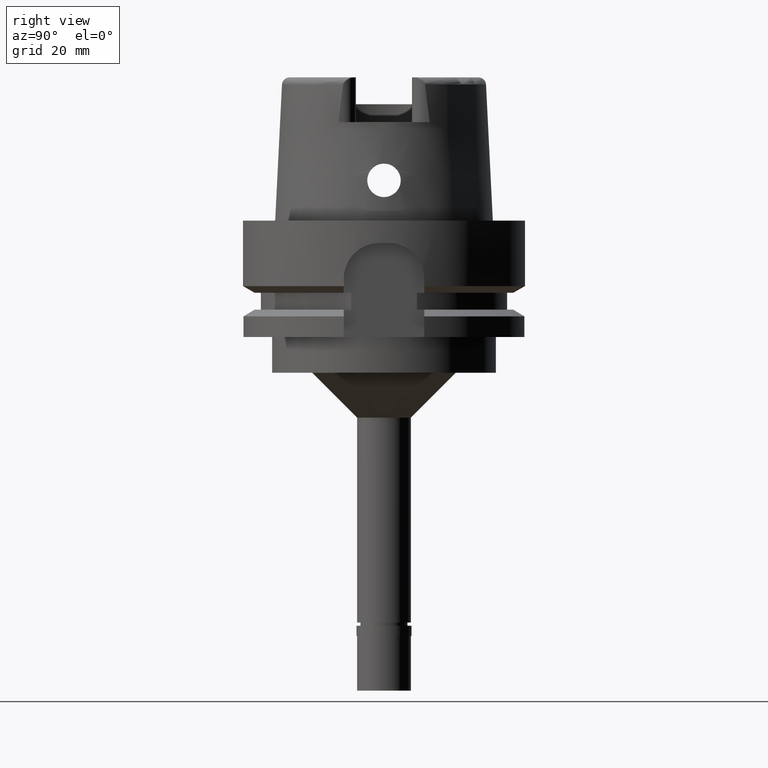
[diagram: clean part render]
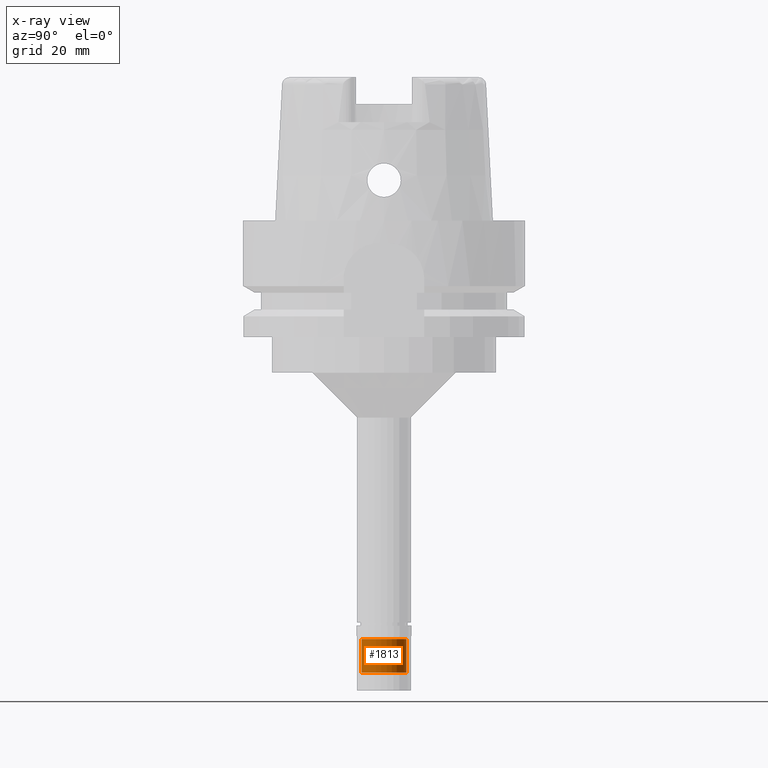
[diagram: x-ray — body ghosted, one internal face saturated and labeled with its STEP entity id]
A machine part, right view, then the same camera in x-ray: the body is ghosted and one INTERNAL B-rep face — a face not visible from any outside direction — is saturated and labeled: STEP entity #1813.
In plain terms, the highlighted cylindrical surface (edge-blend (fillet) strip) has radius 5 mm, axis along (0, 0, 1).
Its self-contained STEP definition (entity closure, byte-faithful):
#4 = ORIENTED_EDGE ( 'NONE', *, *, #2064, .F. ) ;
#232 = CARTESIAN_POINT ( 'NONE',  ( 0.0000000000000000000, 5.000000000000000000, -93.50000000000000000 ) ) ;
#480 = DIRECTION ( 'NONE',  ( 0.0000000000000000000, -1.000000000000000000, 0.0000000000000000000 ) ) ;
#542 = ORIENTED_EDGE ( 'NONE', *, *, #1544, .T. ) ;
#552 = LINE ( 'NONE', #5229, #840 ) ;
#590 = AXIS2_PLACEMENT_3D ( 'NONE', #1804, #3383, #480 ) ;
#715 = EDGE_LOOP ( 'NONE', ( #1834, #4078, #542, #4 ) ) ;
#730 = CARTESIAN_POINT ( 'NONE',  ( 0.0000000000000000000, -5.000000000000000000, -93.50000000000000000 ) ) ;
#828 = DIRECTION ( 'NONE',  ( 0.0000000000000000000, 1.000000000000000000, 0.0000000000000000000 ) ) ;
#840 = VECTOR ( 'NONE', #4848, 1000.000000000000000 ) ;
#1177 = VERTEX_POINT ( 'NONE', #3784 ) ;
#1544 = EDGE_CURVE ( 'NONE', #1177, #3523, #3631, .T. ) ;
#1607 = DIRECTION ( 'NONE',  ( 0.0000000000000000000, 0.0000000000000000000, 1.000000000000000000 ) ) ;
#1804 = CARTESIAN_POINT ( 'NONE',  ( 0.0000000000000000000, 0.0000000000000000000, -101.0000000000000000 ) ) ;
#1813 = ADVANCED_FACE ( 'NONE', ( #4584 ), #3756, .T. ) ;
#1834 = ORIENTED_EDGE ( 'NONE', *, *, #5169, .T. ) ;
#2064 = EDGE_CURVE ( 'NONE', #5201, #3523, #552, .T. ) ;
#2706 = DIRECTION ( 'NONE',  ( 0.0000000000000000000, 1.000000000000000000, 0.0000000000000000000 ) ) ;
#2825 = AXIS2_PLACEMENT_3D ( 'NONE', #3696, #1607, #828 ) ;
#2886 = VERTEX_POINT ( 'NONE', #3504 ) ;
#2888 = CIRCLE ( 'NONE', #5387, 5.000000000000000000 ) ;
#3383 = DIRECTION ( 'NONE',  ( 0.0000000000000000000, 0.0000000000000000000, 1.000000000000000000 ) ) ;
#3504 = CARTESIAN_POINT ( 'NONE',  ( 0.0000000000000000000, -5.000000000000000000, -93.50000000000000000 ) ) ;
#3523 = VERTEX_POINT ( 'NONE', #5056 ) ;
#3576 = DIRECTION ( 'NONE',  ( 0.0000000000000000000, 0.0000000000000000000, -1.000000000000000000 ) ) ;
#3631 = CIRCLE ( 'NONE', #590, 5.000000000000000000 ) ;
#3696 = CARTESIAN_POINT ( 'NONE',  ( 0.0000000000000000000, 0.0000000000000000000, -107.6499999999999915 ) ) ;
#3708 = DIRECTION ( 'NONE',  ( 0.0000000000000000000, 0.0000000000000000000, -1.000000000000000000 ) ) ;
#3756 = CYLINDRICAL_SURFACE ( 'NONE', #2825, 5.000000000000000000 ) ;
#3772 = EDGE_CURVE ( 'NONE', #2886, #1177, #4088, .T. ) ;
#3784 = CARTESIAN_POINT ( 'NONE',  ( 0.0000000000000000000, -5.000000000000000000, -101.0000000000000000 ) ) ;
#3935 = CARTESIAN_POINT ( 'NONE',  ( 0.0000000000000000000, 0.0000000000000000000, -93.50000000000000000 ) ) ;
#4078 = ORIENTED_EDGE ( 'NONE', *, *, #3772, .T. ) ;
#4088 = LINE ( 'NONE', #730, #4827 ) ;
#4584 = FACE_OUTER_BOUND ( 'NONE', #715, .T. ) ;
#4827 = VECTOR ( 'NONE', #3708, 1000.000000000000000 ) ;
#4848 = DIRECTION ( 'NONE',  ( 0.0000000000000000000, 0.0000000000000000000, -1.000000000000000000 ) ) ;
#5056 = CARTESIAN_POINT ( 'NONE',  ( 0.0000000000000000000, 5.000000000000000000, -101.0000000000000000 ) ) ;
#5169 = EDGE_CURVE ( 'NONE', #5201, #2886, #2888, .T. ) ;
#5201 = VERTEX_POINT ( 'NONE', #232 ) ;
#5229 = CARTESIAN_POINT ( 'NONE',  ( 0.0000000000000000000, 5.000000000000000000, -93.50000000000000000 ) ) ;
#5387 = AXIS2_PLACEMENT_3D ( 'NONE', #3935, #3576, #2706 ) ;